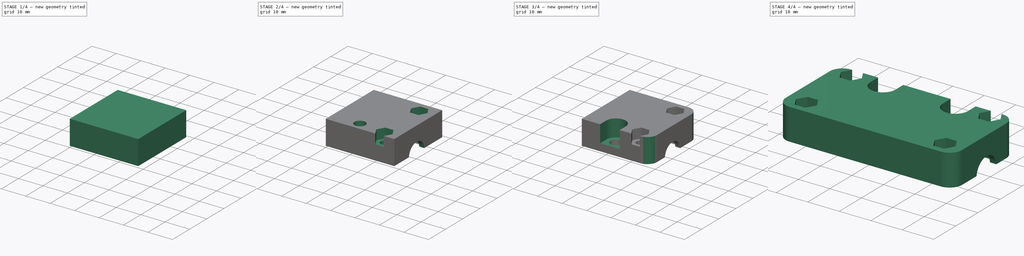
[diagram: build sequence overview — one tinted view per stage of 4, left to right]
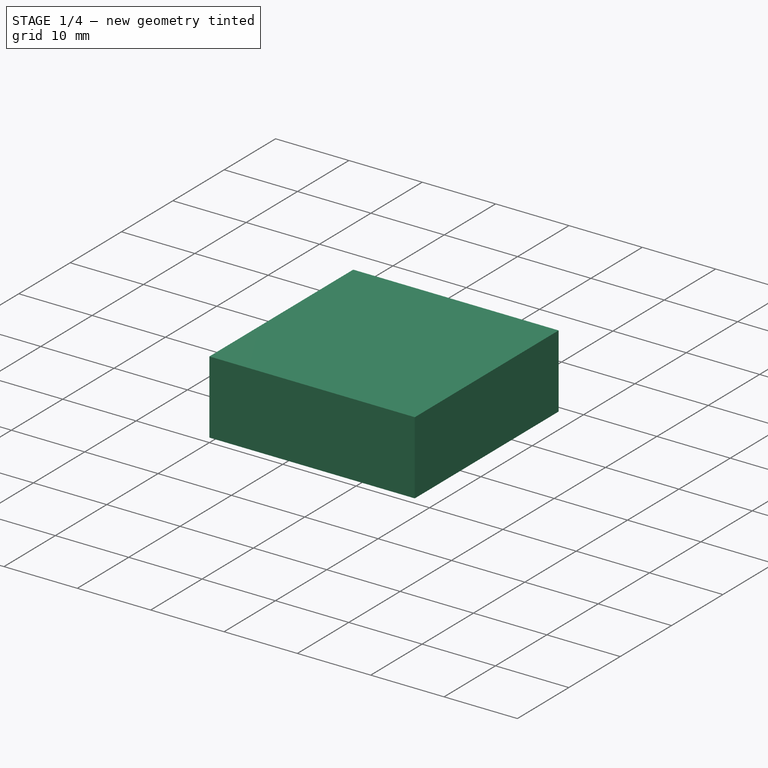
[diagram: stage 1 of 4 — iso view after this stage's code; geometry added in this stage tinted green]
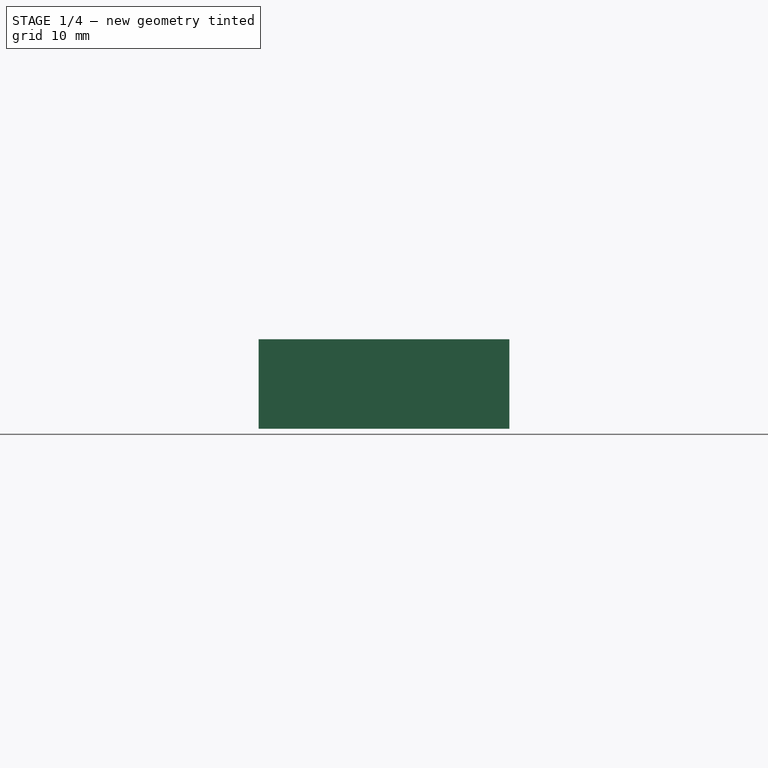
[diagram: stage 1 of 4 — front view after this stage's code; geometry added in this stage tinted green]
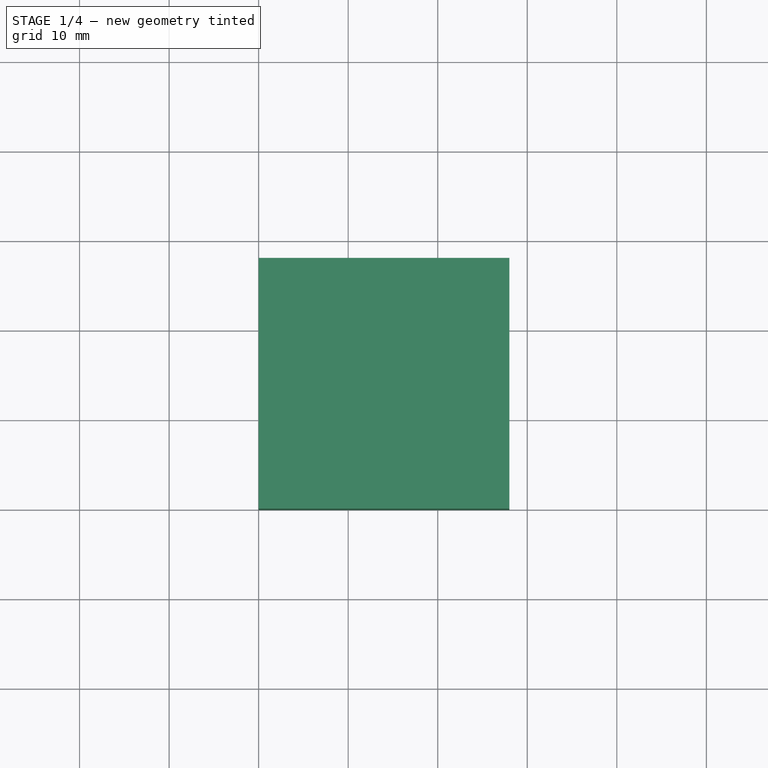
[diagram: stage 1 of 4 — top view after this stage's code; geometry added in this stage tinted green]
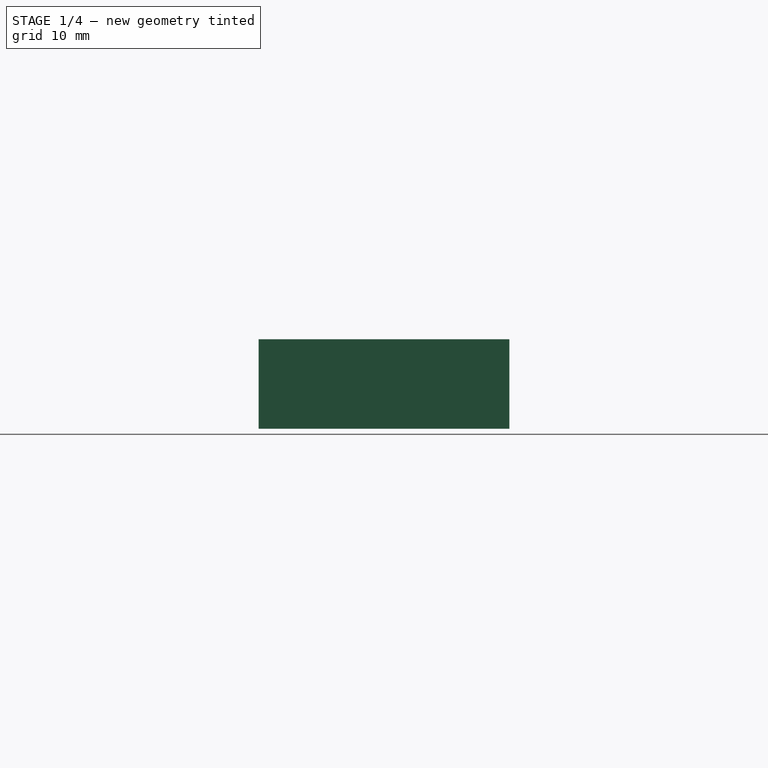
[diagram: stage 1 of 4 — right view after this stage's code; geometry added in this stage tinted green]
FCSTD DOCUMENT  (FreeCAD 0.16R6265 (Git))
Label: x-carrier-trans
License: CC-BY 3.0
LicenseURL: http://creativecommons.org/licenses/by/3.0/
objects: Sketcher::SketchObject×6, PartDesign::Pocket×5, PartDesign::Fillet×2, Part::Mirroring×2, Part::Box×1, PartDesign::Pad×1, Part::FeaturePython×1
note: 24 computed .brp shape members not serialized (recipe doc carries the construction recipe); baked Part::Feature solids carry a one-line shape summary decoded from their .brp

FEATURE [Part::Box] Box  label="Cube"
  Height = 10
  Length = 28
  Width = 28
FEATURE [Sketcher::SketchObject] Sketch
  Placement = pos=(28,0,0) rot=(0.57735,0.57735,0.57735;2.0944rad)
  Support = -> Box [Face2]
  sketch-geometry (2):
    g0: ArcOfCircle CenterX=13 CenterY=-0.5 CenterZ=0 NormalX=0 NormalY=0 NormalZ=1 Radius=6.2 StartAngle=0.0807328 EndAngle=3.06086
    g1: LineSegment StartX=6.82019 StartY=0 StartZ=0 EndX=19.1798 EndY=0 EndZ=0
  constraints (7):
    c: DistanceY(g-1,g0) = -0.5
    c: PointOnObject(g0,g-1)
    c: PointOnObject(g0,g-1)
    c: Coincident(g1,g0)
    c: Coincident(g1,g0)
    c: Radius(g0) = 6.2
    c: DistanceX(g-1,g0) = 13
FEATURE [PartDesign::Pocket] Pocket
  Length = 14.1
  Sketch = -> Sketch
  Type = 0
FEATURE [Sketcher::SketchObject] Sketch001
  ExternalGeometry = -> [Pocket]
  Placement = pos=(28,0,0) rot=(0.57735,0.57735,0.57735;2.0944rad)
  Support = -> Pocket [Face6]
  sketch-geometry (2):
    g0: ArcOfCircle CenterX=13 CenterY=-0.5 CenterZ=0 NormalX=0 NormalY=0 NormalZ=1 Radius=6.2 StartAngle=0.0807328 EndAngle=3.06086
    g1: LineSegment StartX=6.82019 StartY=0 StartZ=0 EndX=19.1798 EndY=0 EndZ=0
  constraints (5):
    c: Coincident(g0,g-3)
    c: Coincident(g0,g-3)
    c: Coincident(g0,g-3)
    c: Coincident(g1,g0)
    c: Coincident(g1,g0)
FEATURE [PartDesign::Pad] Pad
  Length = 2
  Length2 = 100
  Reversed = true
  Sketch = -> Sketch001
  Type = 0
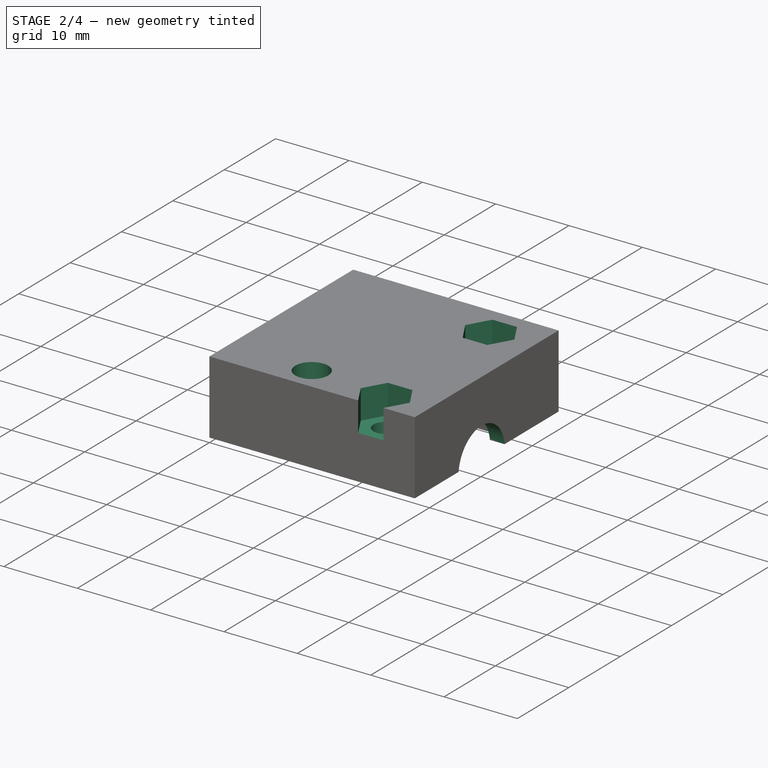
[diagram: stage 2 of 4 — iso view after this stage's code; geometry added in this stage tinted green]
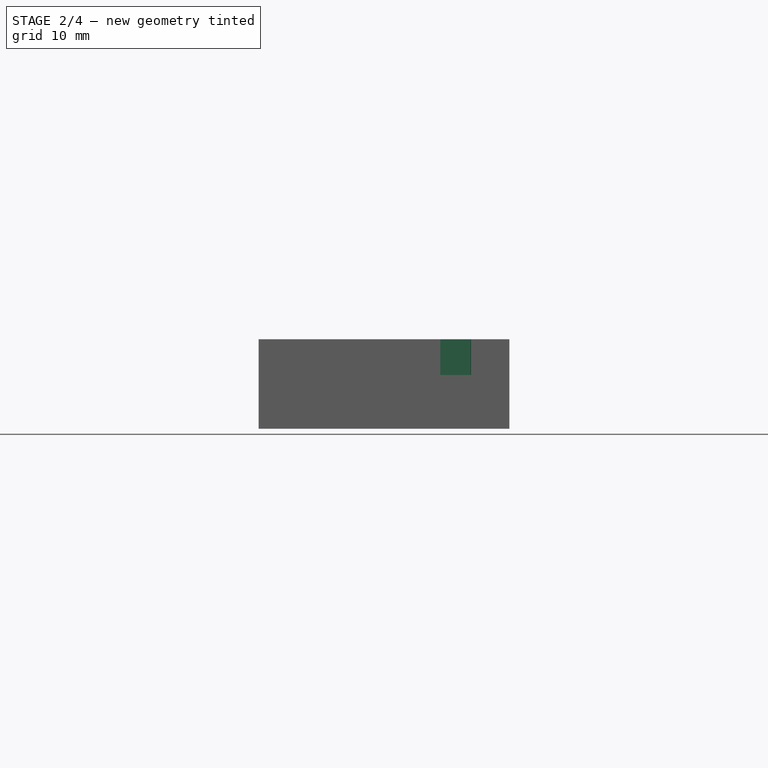
[diagram: stage 2 of 4 — front view after this stage's code; geometry added in this stage tinted green]
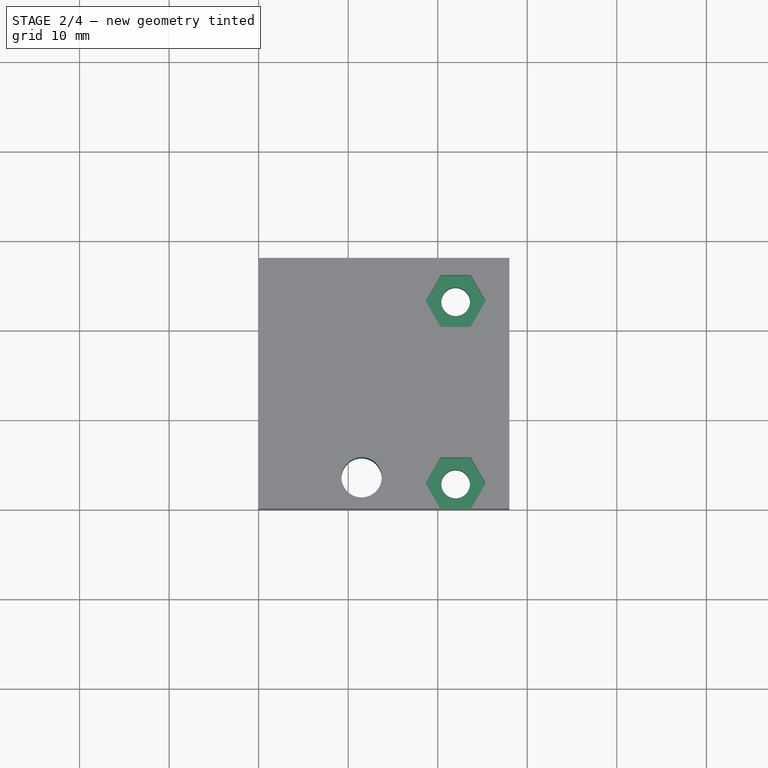
[diagram: stage 2 of 4 — top view after this stage's code; geometry added in this stage tinted green]
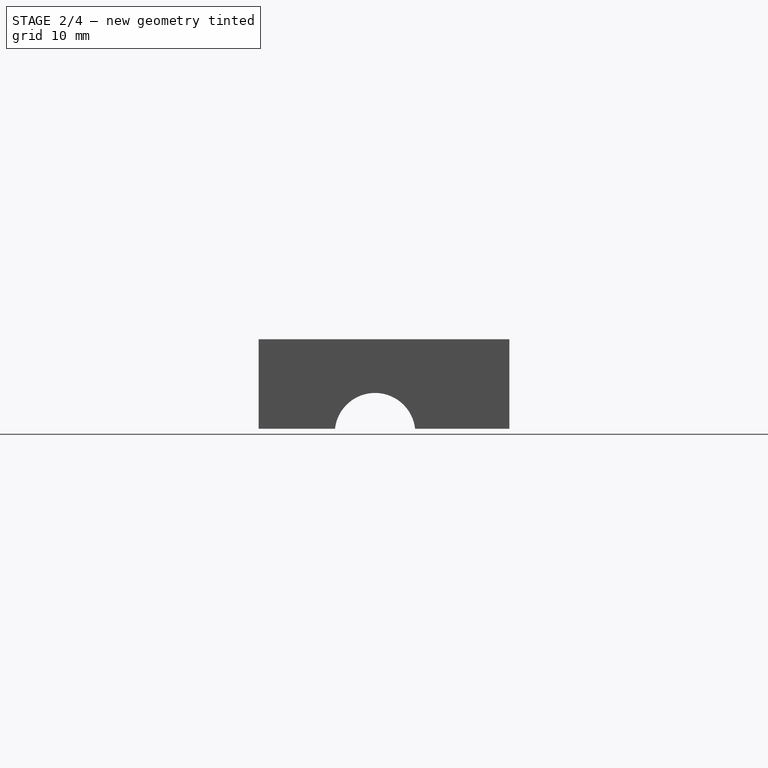
[diagram: stage 2 of 4 — right view after this stage's code; geometry added in this stage tinted green]
FEATURE [Sketcher::SketchObject] Sketch002
  ExternalGeometry = -> [Pad]
  Placement = pos=(28,0,0) rot=(0.57735,0.57735,0.57735;2.0944rad)
  Support = -> Pad [Face10]
  sketch-geometry (1):
    g0: Circle CenterX=13 CenterY=-0.5 CenterZ=0 NormalX=0 NormalY=0 NormalZ=1 Radius=4.5
  constraints (2):
    c: Coincident(g0,g-3)
    c: Radius(g0) = 4.5
FEATURE [PartDesign::Pocket] Pocket001
  Length = 5
  Sketch = -> Sketch002
  Type = 1
FEATURE [Sketcher::SketchObject] Sketch004
  ExternalGeometry = -> [Pocket001]
  Placement = pos=(0,0,0) rot=(1,0,0;3.14159rad)
  Support = -> Pocket001 [Face6]
  sketch-geometry (3):
    g0: Circle CenterX=11.5 CenterY=-3.5 CenterZ=0 NormalX=0 NormalY=0 NormalZ=1 Radius=2.25
    g1: Circle CenterX=22 CenterY=-23.1798 CenterZ=0 NormalX=0 NormalY=0 NormalZ=1 Radius=1.6
    g2: Circle CenterX=22 CenterY=-2.82019 CenterZ=0 NormalX=0 NormalY=0 NormalZ=1 Radius=1.6
  constraints (9):
    c: DistanceX(g-2,g0) = 11.5
    c: DistanceY(g-1,g0) = -3.5
    c: Radius(g0) = 2.25
    c: Distance(g1,g-4) = 4
    c: Distance(g2,g-3) = 4
    c: Distance(g2,g-5) = 6
    c: Distance(g1,g-5) = 6
    c: Equal(g1,g2)
    c: Radius(g2) = 1.6
FEATURE [PartDesign::Pocket] Pocket002
  Length = 5
  Sketch = -> Sketch004
  Type = 1
FEATURE [Sketcher::SketchObject] Sketch005
  ExternalGeometry = -> [Pocket002]
  Placement = pos=(0,0,10) rot=(0,0,1;0rad)
  Support = -> Pocket002 [Face2]
  sketch-geometry (14):
    g0: LineSegment StartX=23.6743 StartY=20.2798 StartZ=0 EndX=25.3486 EndY=23.1798 EndZ=0
    g1: LineSegment StartX=25.3486 StartY=23.1798 StartZ=0 EndX=23.6743 EndY=26.0798 EndZ=0
    g2: LineSegment StartX=23.6743 StartY=26.0798 StartZ=0 EndX=20.3257 EndY=26.0798 EndZ=0
    g3: LineSegment StartX=20.3257 StartY=26.0798 StartZ=0 EndX=18.6514 EndY=23.1798 EndZ=0
    g4: LineSegment StartX=18.6514 StartY=23.1798 StartZ=0 EndX=20.3257 EndY=20.2798 EndZ=0
    g5: LineSegment StartX=20.3257 StartY=20.2798 StartZ=0 EndX=23.6743 EndY=20.2798 EndZ=0
    g6: Circle [constr] CenterX=22 CenterY=23.1798 CenterZ=0 NormalX=0 NormalY=0 NormalZ=1 Radius=3.34863
    g7: LineSegment StartX=23.6743 StartY=-0.0798058 StartZ=0 EndX=25.3486 EndY=2.82019 EndZ=0
    g8: LineSegment StartX=25.3486 StartY=2.82019 StartZ=0 EndX=23.6743 EndY=5.72019 EndZ=0
    g9: LineSegment StartX=23.6743 StartY=5.72019 StartZ=0 EndX=20.3257 EndY=5.72019 EndZ=0
    g10: LineSegment StartX=20.3257 StartY=5.72019 StartZ=0 EndX=18.6514 EndY=2.82019 EndZ=0
    g11: LineSegment StartX=18.6514 StartY=2.82019 StartZ=0 EndX=20.3257 EndY=-0.0798058 EndZ=0
    g12: LineSegment StartX=20.3257 StartY=-0.0798058 StartZ=0 EndX=23.6743 EndY=-0.0798058 EndZ=0
    g13: Circle [constr] CenterX=22 CenterY=2.82019 CenterZ=0 NormalX=0 NormalY=0 NormalZ=1 Radius=3.34863
  constraints (32):
    c: Coincident(g0,g1)
    c: Coincident(g1,g2)
    c: Coincident(g2,g3)
    c: Coincident(g3,g4)
    c: Coincident(g4,g5)
    c: Coincident(g5,g0)
    c: Equal(g0, g1-g5) x5
    c: PointOnObject(g0,g6)
    c: PointOnObject(g1,g6)
    c: PointOnObject(g2,g6)
    c: PointOnObject(g3,g6)
    c: PointOnObject(g4,g6)
    c: PointOnObject(g5,g6)
    c: Coincident(g6,g-4)
    c: Coincident(g7,g8)
    c: Coincident(g8,g9)
    c: Coincident(g9,g10)
    c: Coincident(g10,g11)
    c: Coincident(g11,g12)
    c: Coincident(g12,g7)
    c: Equal(g7, g8-g12) x5
    c: PointOnObject(g7,g13)
    c: PointOnObject(g8,g13)
    c: PointOnObject(g9,g13)
    c: PointOnObject(g10,g13)
    c: PointOnObject(g11,g13)
    c: PointOnObject(g12,g13)
    c: Coincident(g13,g-5)
    c: Equal(g13,g6)
    c: Horizontal(g5)
    c: Horizontal(g12)
    c: Distance(g8,g12) = 5.8
FEATURE [PartDesign::Pocket] Pocket003
  Length = 4
  Sketch = -> Sketch005
  Type = 0
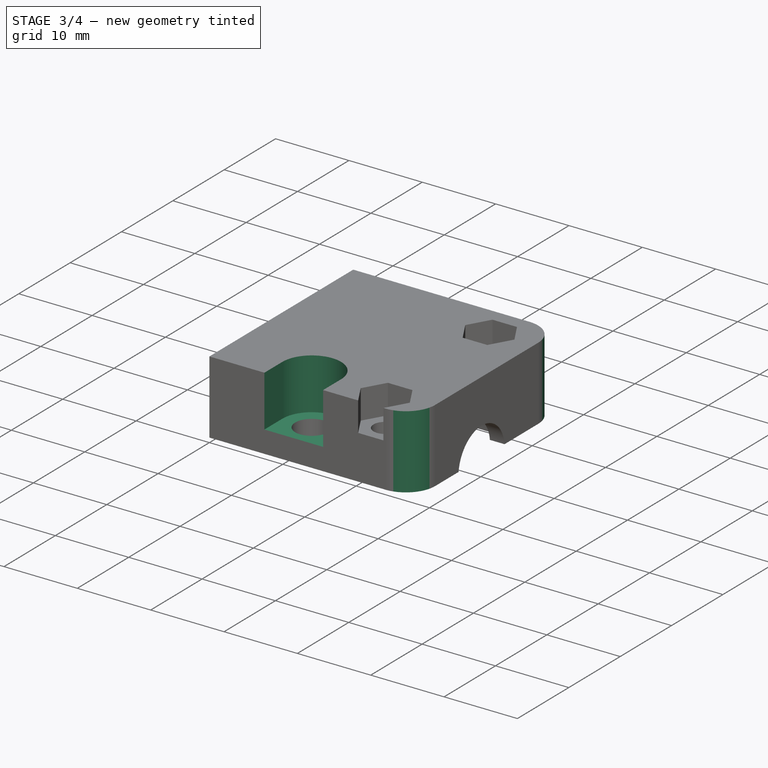
[diagram: stage 3 of 4 — iso view after this stage's code; geometry added in this stage tinted green]
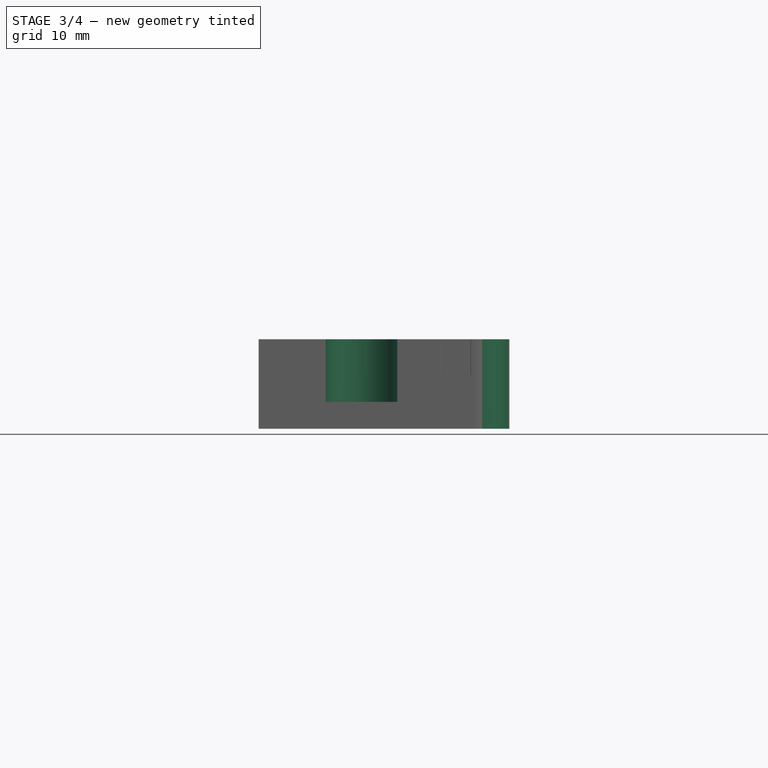
[diagram: stage 3 of 4 — front view after this stage's code; geometry added in this stage tinted green]
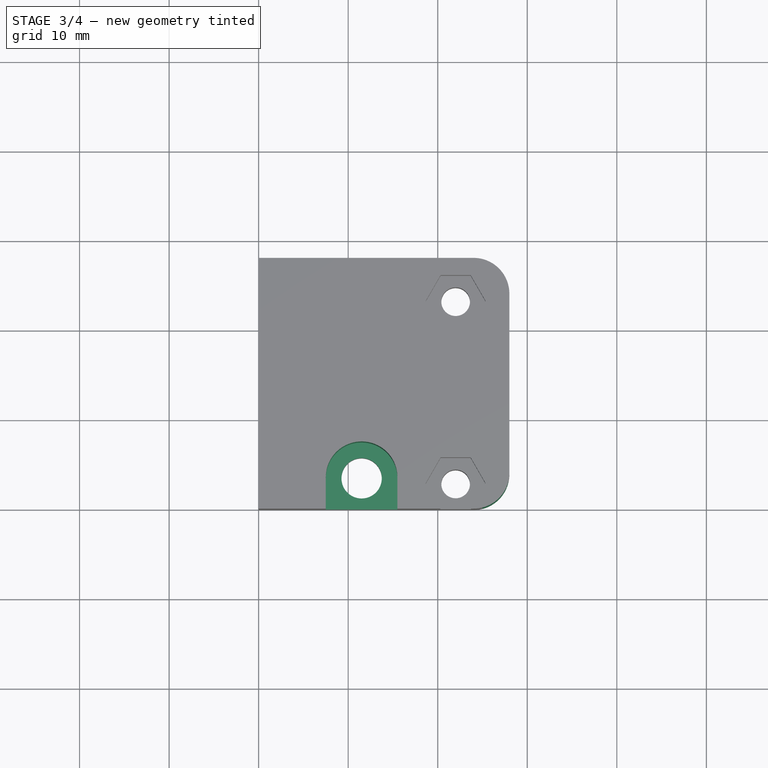
[diagram: stage 3 of 4 — top view after this stage's code; geometry added in this stage tinted green]
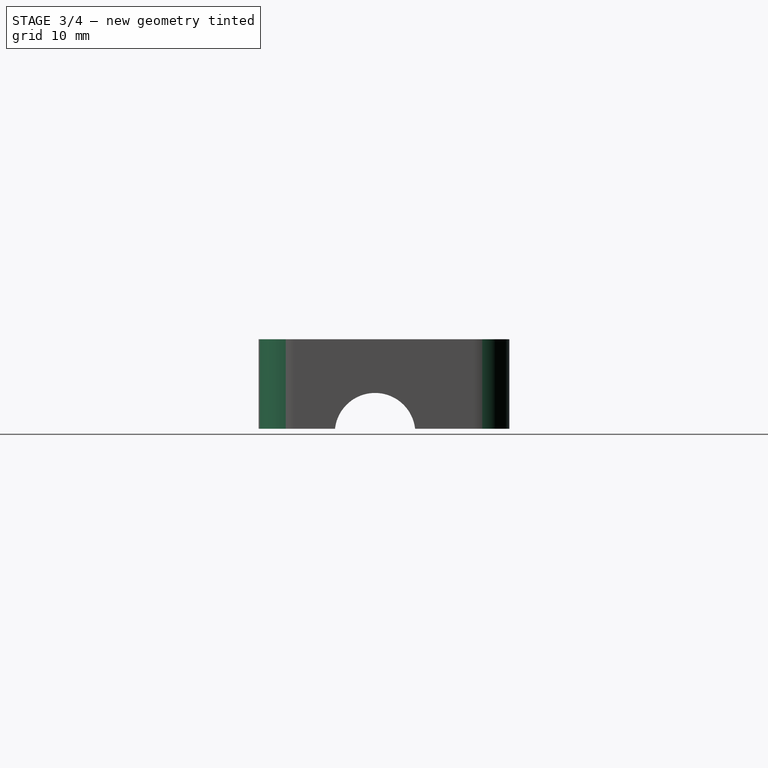
[diagram: stage 3 of 4 — right view after this stage's code; geometry added in this stage tinted green]
FEATURE [Sketcher::SketchObject] Sketch006
  ExternalGeometry = -> [Pocket003]
  Placement = pos=(0,0,10) rot=(0,0,1;0rad)
  Support = -> Pocket003 [Face2]
  sketch-geometry (4):
    g0: ArcOfCircle CenterX=11.5 CenterY=3.5 CenterZ=0 NormalX=0 NormalY=0 NormalZ=1 Radius=4 StartAngle=7.646e-09 EndAngle=3.1416
    g1: LineSegment StartX=7.5 StartY=3.49998 StartZ=0 EndX=7.5 EndY=0 EndZ=0
    g2: LineSegment StartX=7.5 StartY=0 StartZ=0 EndX=15.5 EndY=0 EndZ=0
    g3: LineSegment StartX=15.5 StartY=3.5 StartZ=0 EndX=15.5 EndY=0 EndZ=0
  constraints (12):
    c: Coincident(g0,g-3)
    c: Coincident(g1,g0)
    c: Vertical(g1)
    c: Coincident(g2,g1)
    c: Coincident(g3,g0)
    c: Coincident(g3,g2)
    c: Vertical(g3)
    c: PointOnObject(g1,g-1)
    c: Horizontal(g2)
    c: Radius(g0) = 4
    c: Tangent(g3,g0)
    c: Tangent(g1,g0)
FEATURE [PartDesign::Pocket] Pocket004
  Length = 7
  Sketch = -> Sketch006
  Type = 0
FEATURE [PartDesign::Fillet] Fillet
  Base = -> Pocket004 [Edge27]
  Radius = 4
FEATURE [PartDesign::Fillet] Fillet001
  Base = -> Fillet [Edge23]
  Radius = 4
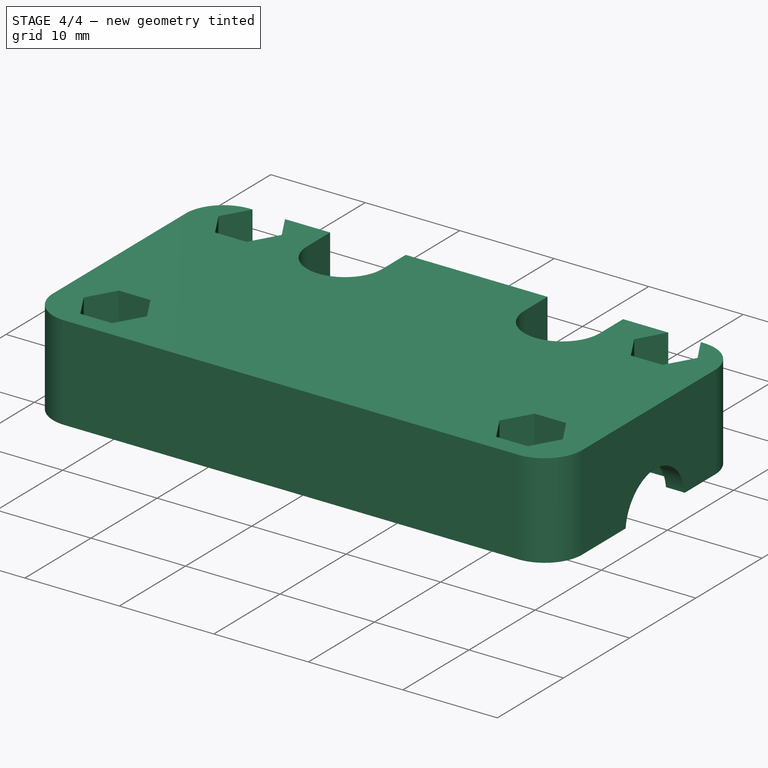
[diagram: stage 4 of 4 — iso view after this stage's code; geometry added in this stage tinted green]
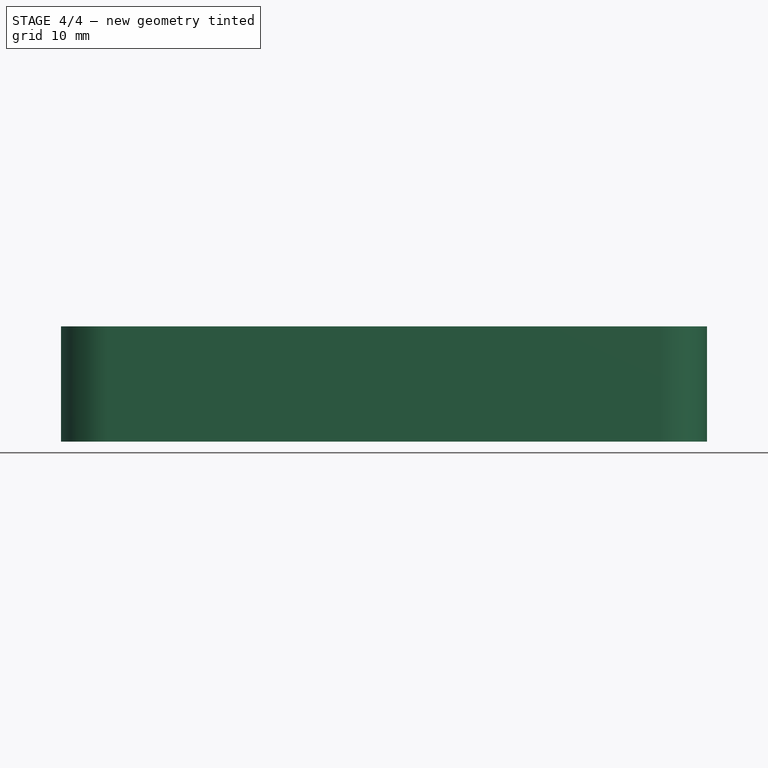
[diagram: stage 4 of 4 — front view after this stage's code; geometry added in this stage tinted green]
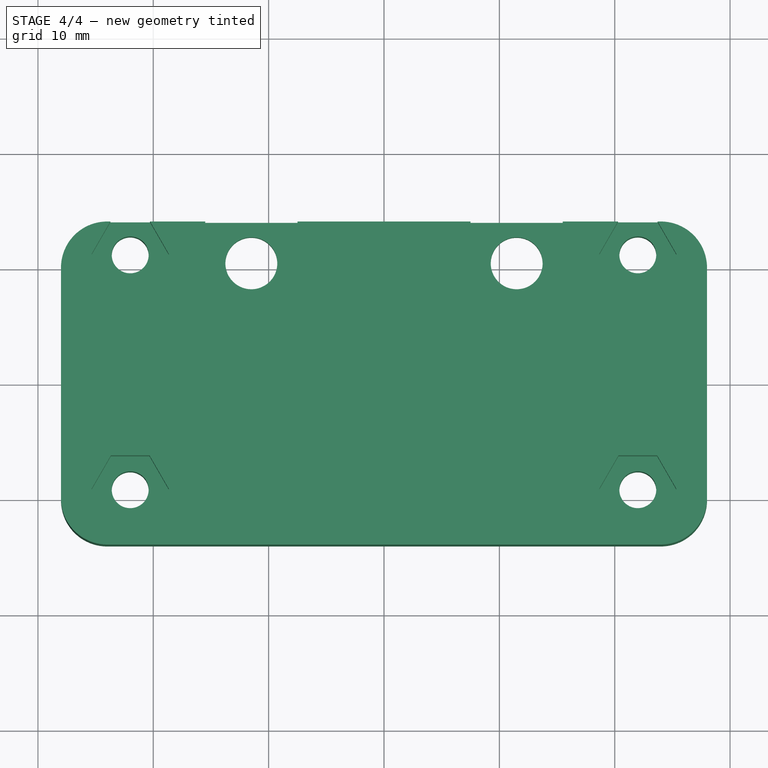
[diagram: stage 4 of 4 — top view after this stage's code; geometry added in this stage tinted green]
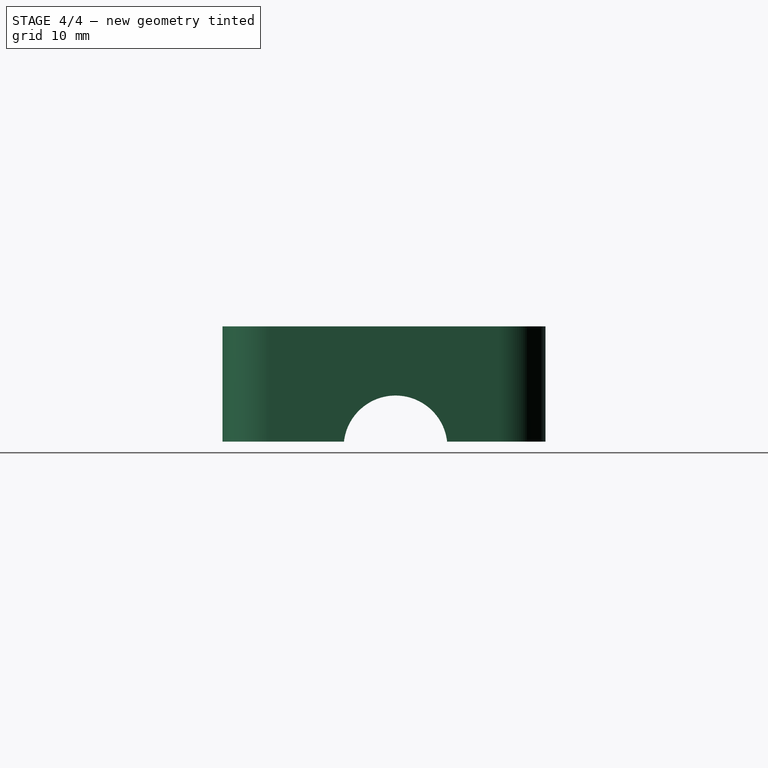
[diagram: stage 4 of 4 — right view after this stage's code; geometry added in this stage tinted green]
FEATURE [Part::Mirroring] Part__Mirroring  label="Fillet001 (Mirror #1)"
  Base = (0,0,0)
  Normal = (1,0,0)
  Source = -> Fillet001
FEATURE [Part::FeaturePython] Connect  # WARN: FeaturePython — macro-defined, semantics opaque (R4)
  Base = -> Part__Mirroring
  Mode = 1
  Tool = -> Fillet001
FEATURE [Part::Mirroring] Part__Mirroring001  label="Connect (Mirror #2)"
  Base = (0,-8,0)
  Normal = (0,1,0)
  Source = -> Connect
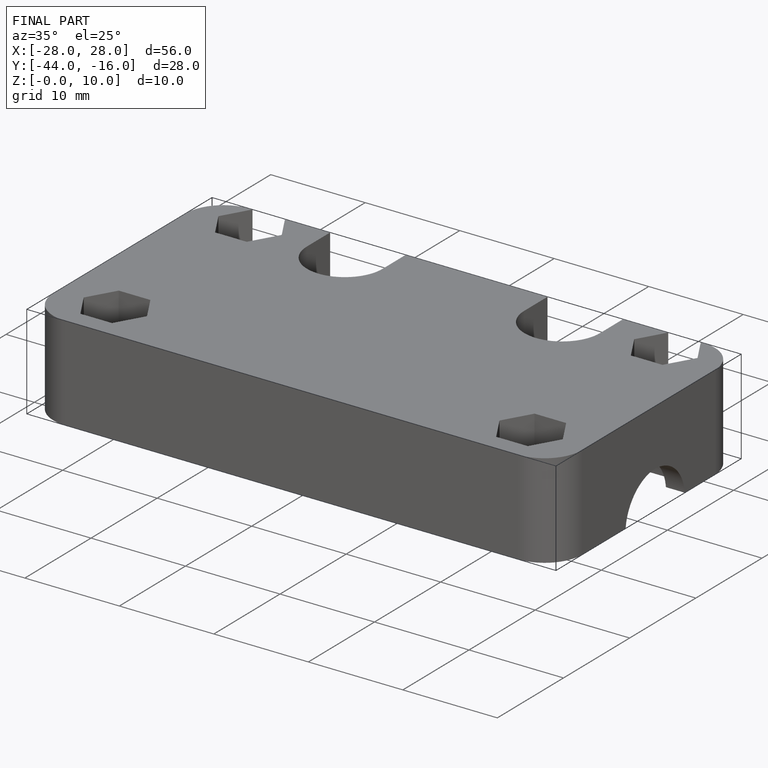
[diagram: finished part — iso view with bounding-box wireframe]
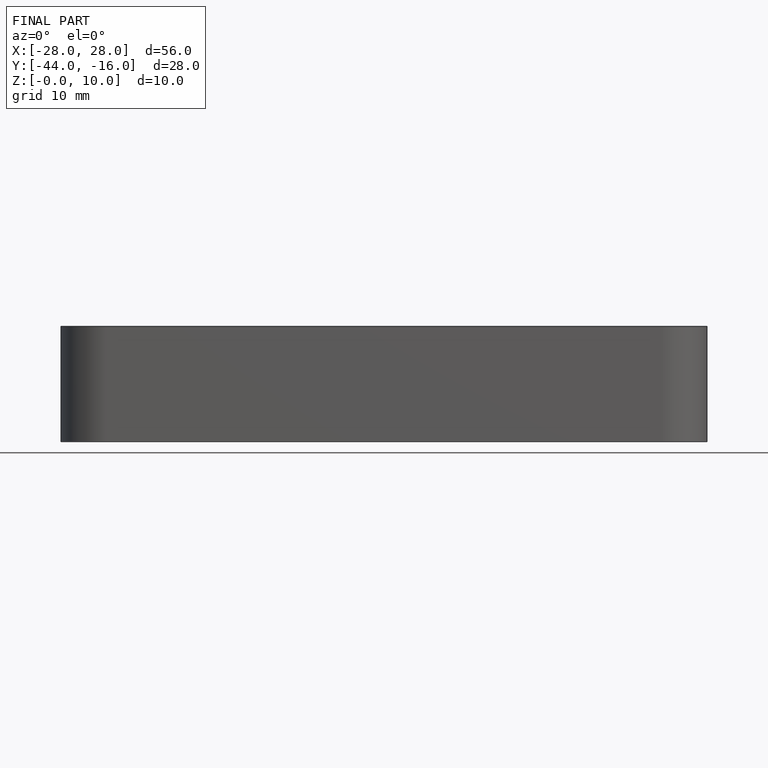
[diagram: finished part — front view with bounding-box wireframe]
